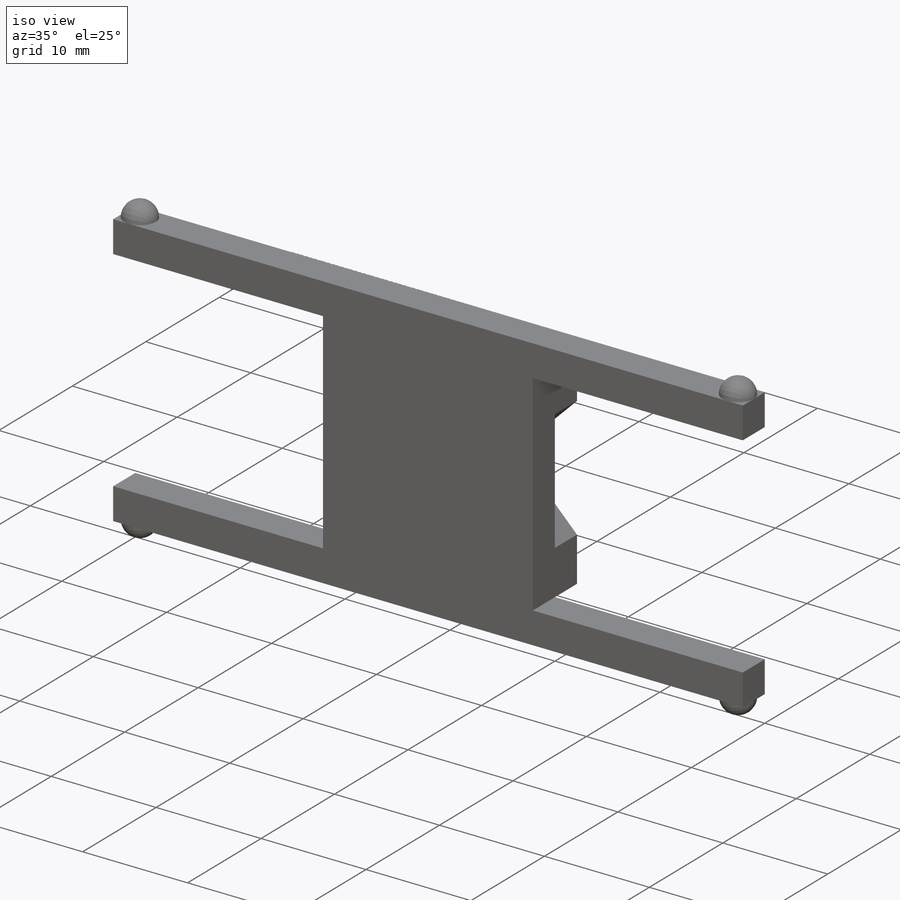
[diagram: iso view]
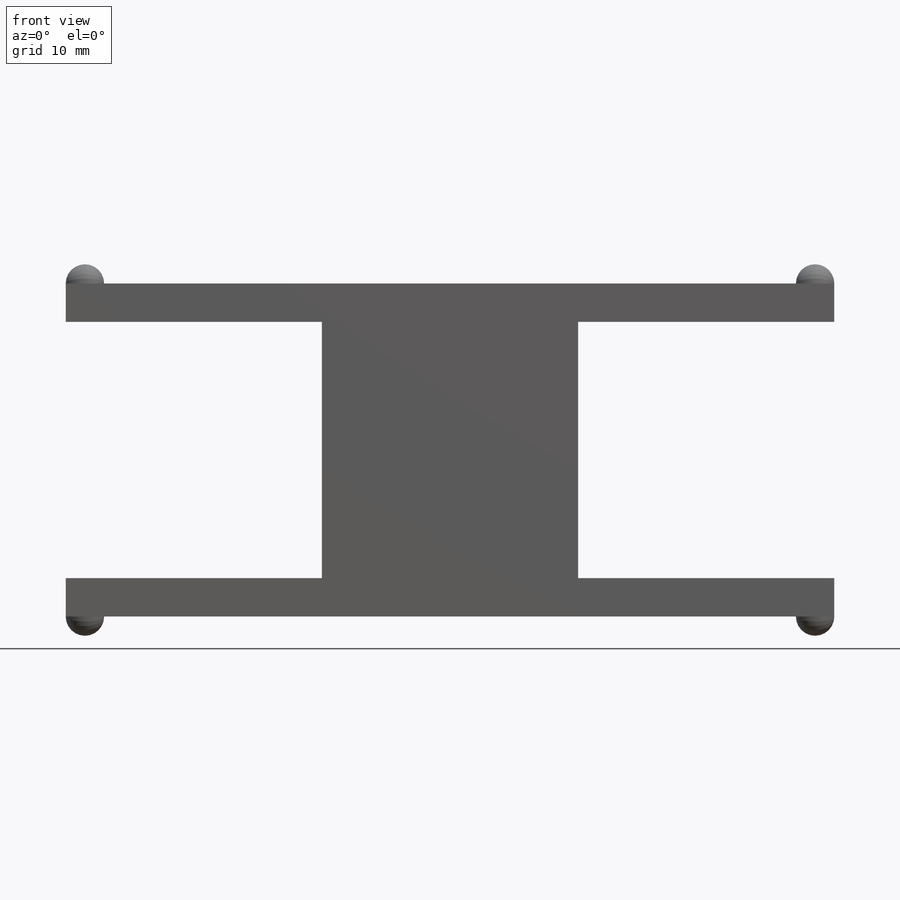
[diagram: front view]
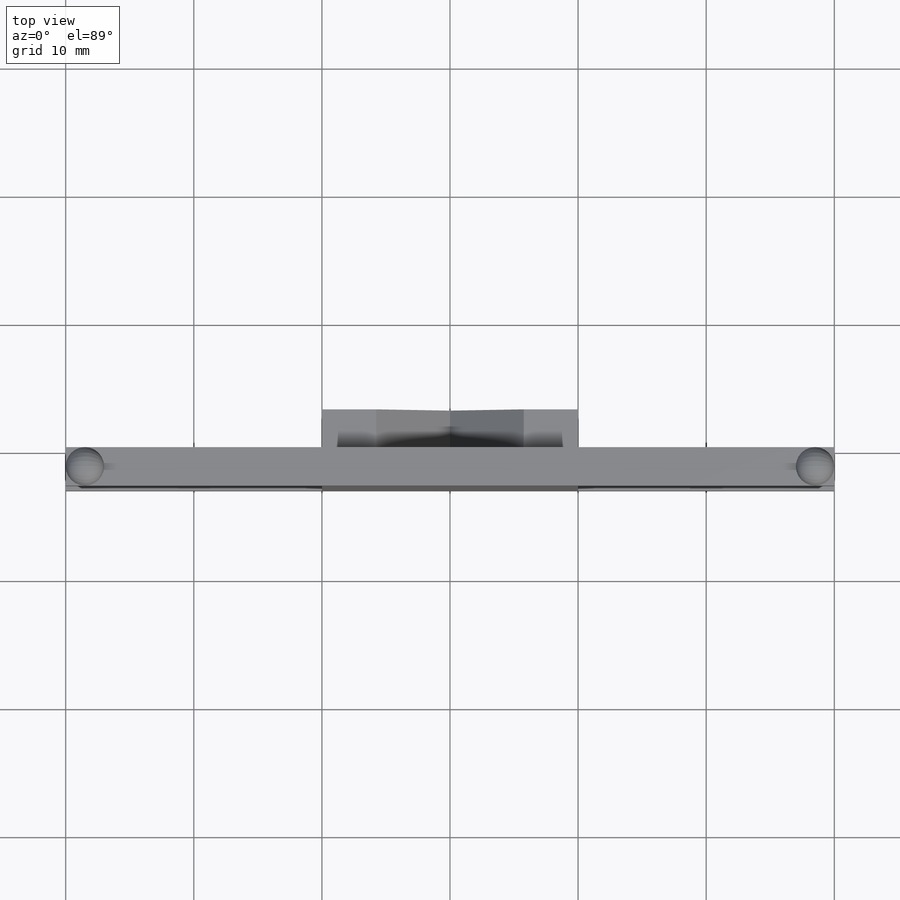
[diagram: top view]
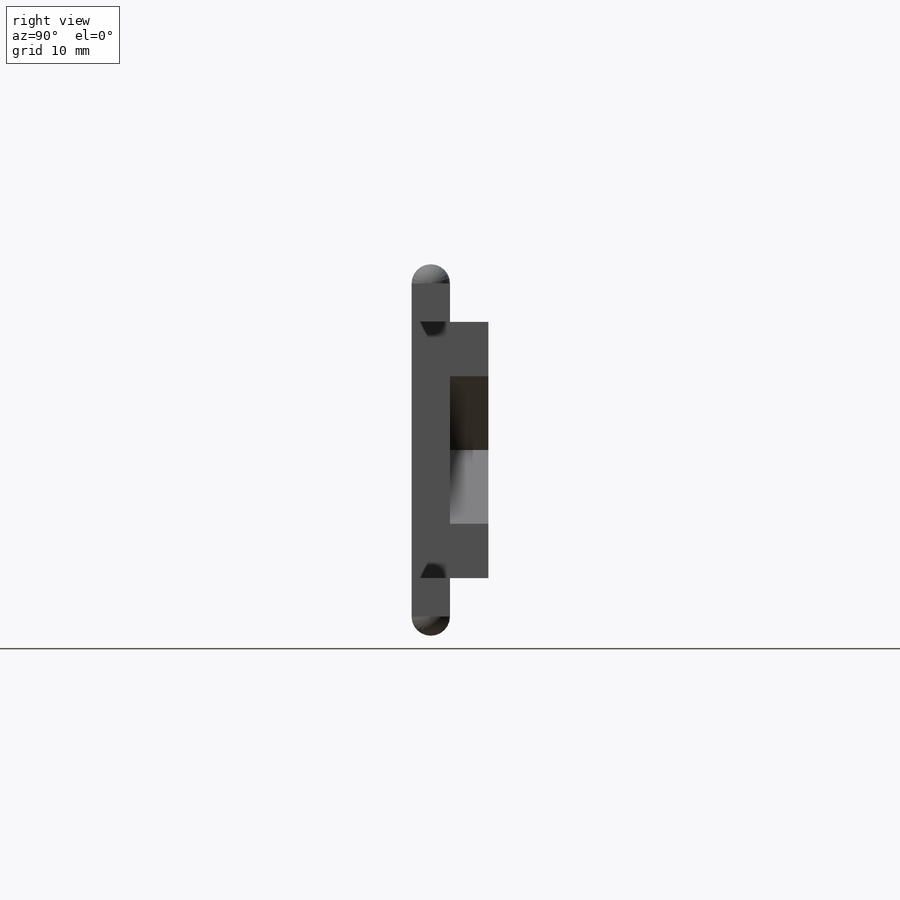
[diagram: right view]
SOLIDWORKS PART (.sldprt)
format: sldprt  version: not decoded by parser v0  size: 310,784 bytes
history: native  units: mm
features: sketch x6, revolve x3, extrude x2, material x1 (+13 scaffold rows collapsed)
feature tree (25):
  scaffold x13  (default folders/planes/origin — collapsed)
  material  "Material <not specified>"
  sketch  "Sketch1"  dims[c1.D9=1.5mm c1.D1=30.0mm c1.D2=10.0mm c1.D3=10.0mm c1.D4=7.0mm c1.D5=3.0mm c2.D2=3.0mm c2.D3=10.0mm c2.D4=20.0mm c2.D6=10.0mm c2.D7=30.0mm c2.D8=3.0mm c2.D10=27.0mm c2.D11=10.0mm c2.D12=27.0mm]
  extrude  "Boss-Extrude1"  Depth=3mm
  sketch  "ball1"  dims[D1=1.5mm]
  revolve  "ball1_revolved"  Angle=180deg
  sketch  "ball2"  dims[D1=0.0mm]
  sketch  "Sketch5"  dims[c1.D1=1.5mm c1.D2=2.5mm c2.D1=0.0mm c2.D2=0.0mm]
  sketch  "Sketch7"  dims[D3=20.0mm D4=20.0mm D1=3.0mm D2=3.0mm]
  sketch  "Sketch8"  dims[c1.D1=3.0mm c1.D2=3.0mm c1.D3=3.0mm c1.D4=3.0mm c1.D5=~4.242641mm c1.D6=~4.242641mm c1.D7=3.0mm c1.D8=~1.463281mm c1.D9=~2.069392mm c2.D8=3.0mm c2.D5=3.0mm c2.D6=3.0mm c2.D9=3.0mm c2.D10=3.0mm c3.D9=3.0mm c3.D11=3.0mm c4.D9=3.0mm c4.D11=3.0mm]
  extrude  "Boss-Extrude3"  Depth=3mm
  revolve  "Revolve4"  Angle=360deg
  revolve  "Revolve5"  Angle=360deg
decode coverage: 11 of 11 modeling features carry decoded parameters
note: ~ marks probable driven/reference dimensions
note: suppression state not decoded; provenance and decode notes live in map.json
